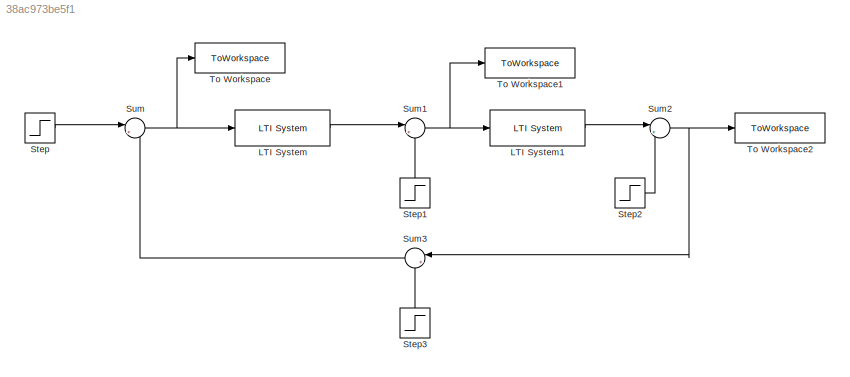
MODEL slx_38ac973be5f1
KIND model
CONFIG AbsTol = auto
CONFIG EnableMultiTasking = off
CONFIG FixedStep = auto
CONFIG MaxStep = auto
CONFIG MinStep = auto
CONFIG RelTol = 1e-3
CONFIG SampleTimeConstraint = Unconstrained
CONFIG SolverName = VariableStepAuto
CONFIG StartTime = 0.0
CONFIG StopTime = .5
BLOCK [Reference] LTI System  REF=cstblocks/LTI System
  SourceBlock = cstblocks/LTI System
  SourceType = LTI Block
BLOCK [Reference] LTI System1  REF=cstblocks/LTI System
  SourceBlock = cstblocks/LTI System
  SourceType = LTI Block
BLOCK [Step] Step
  After = rho
  SampleTime = 0
  Time = 10
BLOCK [Step] Step1
  After = delta_d_a
  NameLocation = right
  SampleTime = 0
  Time = 0
BLOCK [Step] Step2
  After = delta_d_y
  SampleTime = 0
  Time = 0
BLOCK [Step] Step3
  NameLocation = right
  SampleTime = 0
  Time = 0
BLOCK [Sum] Sum
  Inputs = |++
BLOCK [Sum] Sum1
  Inputs = |++
  NameLocation = top
BLOCK [Sum] Sum2
  Inputs = |++
BLOCK [Sum] Sum3
  Inputs = |++
  NameLocation = top
BLOCK [ToWorkspace] To Workspace
  FixptAsFi = on
  MaxDataPoints = inf
  SampleTime = -1
  SaveFormat = Timeseries
  VariableName = e
BLOCK [ToWorkspace] To Workspace1
  FixptAsFi = on
  MaxDataPoints = inf
  SampleTime = -1
  SaveFormat = Timeseries
  VariableName = a
BLOCK [ToWorkspace] To Workspace2
  FixptAsFi = on
  MaxDataPoints = inf
  SampleTime = -1
  SaveFormat = Timeseries
  VariableName = y
LINE LTI System1:1 -> Sum2:1
LINE LTI System:1 -> Sum1:1
LINE Step1:1 -> Sum1:2
LINE Step2:1 -> Sum2:2
LINE Step3:1 -> Sum3:2
LINE Step:1 -> Sum:1
NET Sum1:1 -> LTI System1:1, To Workspace1:1
NET Sum2:1 -> Sum3:1, To Workspace2:1
LINE Sum3:1 -> Sum:2
NET Sum:1 -> LTI System:1, To Workspace:1
note: NET lines group one-source signal fan-out (src -> all destinations, sorted); 1:1 wires keep LINE
